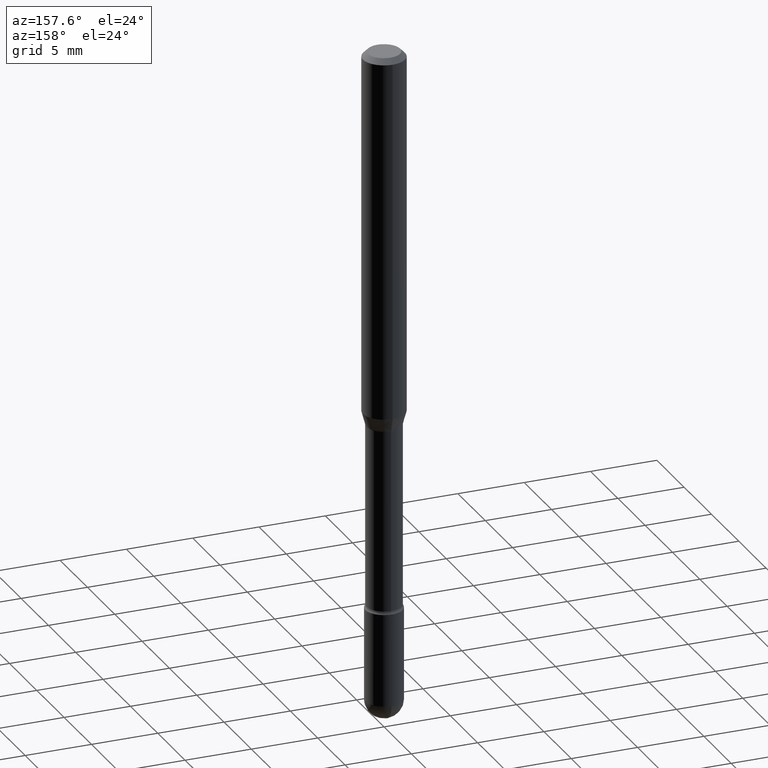
[diagram: clean part render]
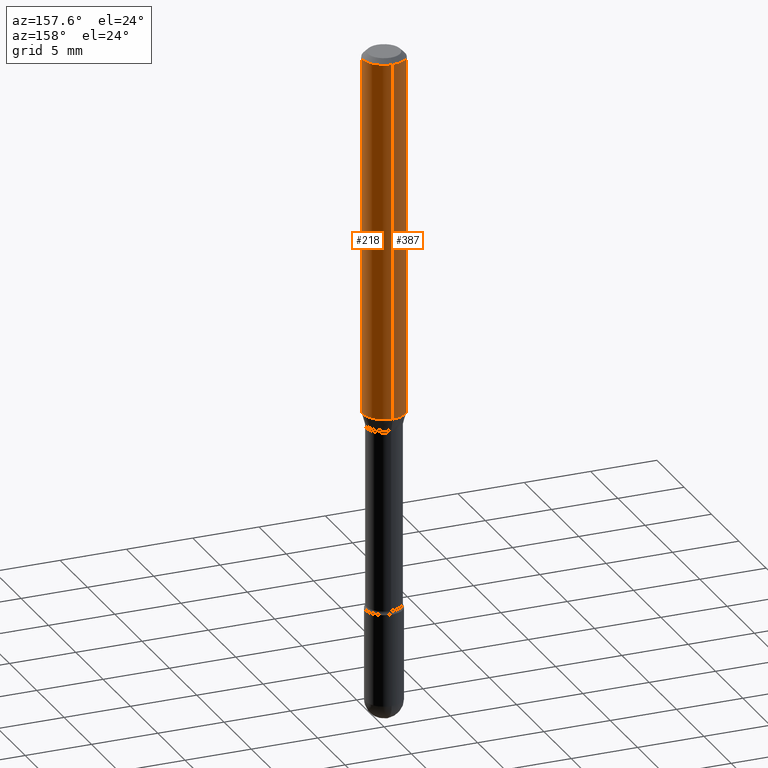
[diagram: same view with one multi-face feature highlighted, each face labeled with its STEP entity id]
A machine part, auxiliary view. The highlighted faces form ONE feature: a constant-radius fillet chain: 2 tangent blend faces with common blend radius 1.5875 mm. The faces share edges in the B-rep.
Their STEP definitions:
[1] entity #387 (Cylinder):
#32 = FACE_OUTER_BOUND ( 'NONE', #536, .T. ) ;
#35 = DIRECTION ( 'NONE',  ( -2.445407676083819856E-29, 3.491568880627540289E-15, 1.000000000000000000 ) ) ;
#55 = ORIENTED_EDGE ( 'NONE', *, *, #310, .F. ) ;
#62 = EDGE_CURVE ( 'NONE', #457, #83, #511, .T. ) ;
#81 = DIRECTION ( 'NONE',  ( -6.982962677686265922E-15, -1.000000000000000000, 3.491568880627540684E-15 ) ) ;
#83 = VERTEX_POINT ( 'NONE', #523 ) ;
#84 = CARTESIAN_POINT ( 'NONE',  ( 4.440892098500891416E-16, 0.06249999999999995143, -0.01500000000000030129 ) ) ;
#90 = CARTESIAN_POINT ( 'NONE',  ( -4.364351673553652919E-16, -0.06250000000000377476, -1.079693851278255456 ) ) ;
#91 = VERTEX_POINT ( 'NONE', #90 ) ;
#124 = AXIS2_PLACEMENT_3D ( 'NONE', #210, #35, #81 ) ;
#129 = VERTEX_POINT ( 'NONE', #459 ) ;
#131 = DIRECTION ( 'NONE',  ( -2.445407676083819856E-29, 3.491568880627540289E-15, 1.000000000000000000 ) ) ;
#146 = DIRECTION ( 'NONE',  ( -2.445407676083820136E-29, 3.491568880627540684E-15, 1.000000000000000000 ) ) ;
#177 = DIRECTION ( 'NONE',  ( -6.982962677686265922E-15, -1.000000000000000000, 3.483106191921935554E-15 ) ) ;
#210 = CARTESIAN_POINT ( 'NONE',  ( -1.169113584055446105E-44, 1.669184350826100908E-30, 4.780733988912460139E-16 ) ) ;
#220 = VECTOR ( 'NONE', #146, 39.37007874015748143 ) ;
#221 = LINE ( 'NONE', #350, #220 ) ;
#225 = ORIENTED_EDGE ( 'NONE', *, *, #524, .T. ) ;
#248 = ORIENTED_EDGE ( 'NONE', *, *, #62, .F. ) ;
#257 = DIRECTION ( 'NONE',  ( -6.982962677686265922E-15, -1.000000000000000000, 4.370956789862821150E-15 ) ) ;
#265 = AXIS2_PLACEMENT_3D ( 'NONE', #519, #131, #177 ) ;
#293 = VECTOR ( 'NONE', #432, 39.37007874015748143 ) ;
#295 = CARTESIAN_POINT ( 'NONE',  ( 4.440892098500625669E-16, 0.06250000000000000000, 2.598503438520248198E-16 ) ) ;
#310 = EDGE_CURVE ( 'NONE', #129, #457, #559, .T. ) ;
#337 = CYLINDRICAL_SURFACE ( 'NONE', #124, 0.06250000000000000000 ) ;
#340 = CARTESIAN_POINT ( 'NONE',  ( 2.640291631736349260E-29, -3.769825451728058184E-15, -1.079693851278255678 ) ) ;
#346 = DIRECTION ( 'NONE',  ( -2.445407676083819856E-29, 3.491568880627540289E-15, 1.000000000000000000 ) ) ;
#350 = CARTESIAN_POINT ( 'NONE',  ( -4.364351673553916201E-16, -0.06250000000000000000, 6.962964539304673560E-16 ) ) ;
#369 = ORIENTED_EDGE ( 'NONE', *, *, #542, .T. ) ;
#377 = CIRCLE ( 'NONE', #522, 0.06250000000000000000 ) ;
#387 = ADVANCED_FACE ( 'NONE', ( #32 ), #337, .T. ) ;
#432 = DIRECTION ( 'NONE',  ( -2.445407676083820136E-29, 3.491568880627540684E-15, 1.000000000000000000 ) ) ;
#457 = VERTEX_POINT ( 'NONE', #84 ) ;
#459 = CARTESIAN_POINT ( 'NONE',  ( 4.440892098500888458E-16, 0.06249999999999621830, -1.079693851278256123 ) ) ;
#511 = CIRCLE ( 'NONE', #265, 0.06250000000000000000 ) ;
#519 = CARTESIAN_POINT ( 'NONE',  ( 3.668111514125750155E-31, -5.237353320941339203E-17, -0.01500000000000008271 ) ) ;
#522 = AXIS2_PLACEMENT_3D ( 'NONE', #340, #346, #257 ) ;
#523 = CARTESIAN_POINT ( 'NONE',  ( -4.364351673553912750E-16, -0.06250000000000005551, -0.01499999999999986587 ) ) ;
#524 = EDGE_CURVE ( 'NONE', #91, #83, #221, .T. ) ;
#536 = EDGE_LOOP ( 'NONE', ( #55, #369, #225, #248 ) ) ;
#542 = EDGE_CURVE ( 'NONE', #129, #91, #377, .T. ) ;
#559 = LINE ( 'NONE', #295, #293 ) ;
[2] entity #218 (Cylinder):
#39 = EDGE_CURVE ( 'NONE', #83, #457, #446, .T. ) ;
#59 = AXIS2_PLACEMENT_3D ( 'NONE', #549, #273, #537 ) ;
#83 = VERTEX_POINT ( 'NONE', #523 ) ;
#84 = CARTESIAN_POINT ( 'NONE',  ( 4.440892098500891416E-16, 0.06249999999999995143, -0.01500000000000030129 ) ) ;
#90 = CARTESIAN_POINT ( 'NONE',  ( -4.364351673553652919E-16, -0.06250000000000377476, -1.079693851278255456 ) ) ;
#91 = VERTEX_POINT ( 'NONE', #90 ) ;
#98 = CIRCLE ( 'NONE', #284, 0.06250000000000000000 ) ;
#112 = FACE_OUTER_BOUND ( 'NONE', #380, .T. ) ;
#118 = ORIENTED_EDGE ( 'NONE', *, *, #39, .F. ) ;
#129 = VERTEX_POINT ( 'NONE', #459 ) ;
#146 = DIRECTION ( 'NONE',  ( -2.445407676083820136E-29, 3.491568880627540684E-15, 1.000000000000000000 ) ) ;
#174 = DIRECTION ( 'NONE',  ( -6.982962677686265922E-15, -1.000000000000000000, 3.483106191921935554E-15 ) ) ;
#213 = DIRECTION ( 'NONE',  ( -2.445407676083819856E-29, 3.491568880627540289E-15, 1.000000000000000000 ) ) ;
#218 = ADVANCED_FACE ( 'NONE', ( #112 ), #315, .T. ) ;
#220 = VECTOR ( 'NONE', #146, 39.37007874015748143 ) ;
#221 = LINE ( 'NONE', #350, #220 ) ;
#222 = DIRECTION ( 'NONE',  ( -2.445407676083819856E-29, 3.491568880627540289E-15, 1.000000000000000000 ) ) ;
#252 = ORIENTED_EDGE ( 'NONE', *, *, #310, .T. ) ;
#256 = ORIENTED_EDGE ( 'NONE', *, *, #524, .F. ) ;
#273 = DIRECTION ( 'NONE',  ( -2.445407676083819856E-29, 3.491568880627540289E-15, 1.000000000000000000 ) ) ;
#284 = AXIS2_PLACEMENT_3D ( 'NONE', #436, #213, #518 ) ;
#293 = VECTOR ( 'NONE', #432, 39.37007874015748143 ) ;
#295 = CARTESIAN_POINT ( 'NONE',  ( 4.440892098500625669E-16, 0.06250000000000000000, 2.598503438520248198E-16 ) ) ;
#310 = EDGE_CURVE ( 'NONE', #129, #457, #559, .T. ) ;
#315 = CYLINDRICAL_SURFACE ( 'NONE', #59, 0.06250000000000000000 ) ;
#339 = ORIENTED_EDGE ( 'NONE', *, *, #558, .T. ) ;
#350 = CARTESIAN_POINT ( 'NONE',  ( -4.364351673553916201E-16, -0.06250000000000000000, 6.962964539304673560E-16 ) ) ;
#380 = EDGE_LOOP ( 'NONE', ( #339, #252, #118, #256 ) ) ;
#385 = CARTESIAN_POINT ( 'NONE',  ( 3.668111514125750155E-31, -5.237353320941339203E-17, -0.01500000000000008271 ) ) ;
#415 = AXIS2_PLACEMENT_3D ( 'NONE', #385, #222, #174 ) ;
#432 = DIRECTION ( 'NONE',  ( -2.445407676083820136E-29, 3.491568880627540684E-15, 1.000000000000000000 ) ) ;
#436 = CARTESIAN_POINT ( 'NONE',  ( 2.640291631736349260E-29, -3.769825451728058184E-15, -1.079693851278255678 ) ) ;
#446 = CIRCLE ( 'NONE', #415, 0.06250000000000000000 ) ;
#457 = VERTEX_POINT ( 'NONE', #84 ) ;
#459 = CARTESIAN_POINT ( 'NONE',  ( 4.440892098500888458E-16, 0.06249999999999621830, -1.079693851278256123 ) ) ;
#518 = DIRECTION ( 'NONE',  ( -6.982962677686265922E-15, -1.000000000000000000, 4.370956789862821150E-15 ) ) ;
#523 = CARTESIAN_POINT ( 'NONE',  ( -4.364351673553912750E-16, -0.06250000000000005551, -0.01499999999999986587 ) ) ;
#524 = EDGE_CURVE ( 'NONE', #91, #83, #221, .T. ) ;
#537 = DIRECTION ( 'NONE',  ( -6.982962677686265922E-15, -1.000000000000000000, 3.491568880627540684E-15 ) ) ;
#549 = CARTESIAN_POINT ( 'NONE',  ( -1.169113584055446105E-44, 1.669184350826100908E-30, 4.780733988912460139E-16 ) ) ;
#558 = EDGE_CURVE ( 'NONE', #91, #129, #98, .T. ) ;
#559 = LINE ( 'NONE', #295, #293 ) ;